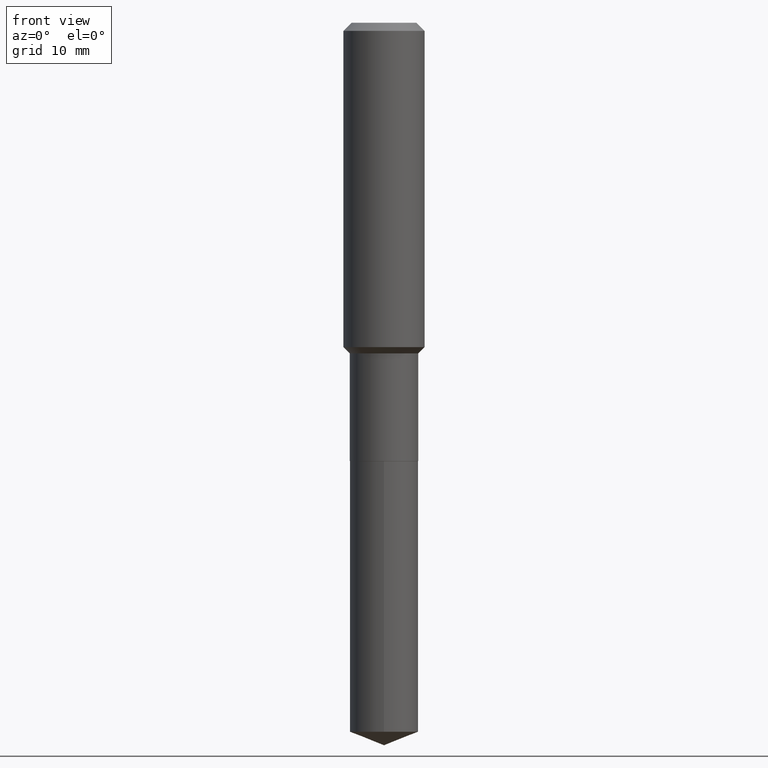
[diagram: clean part render]
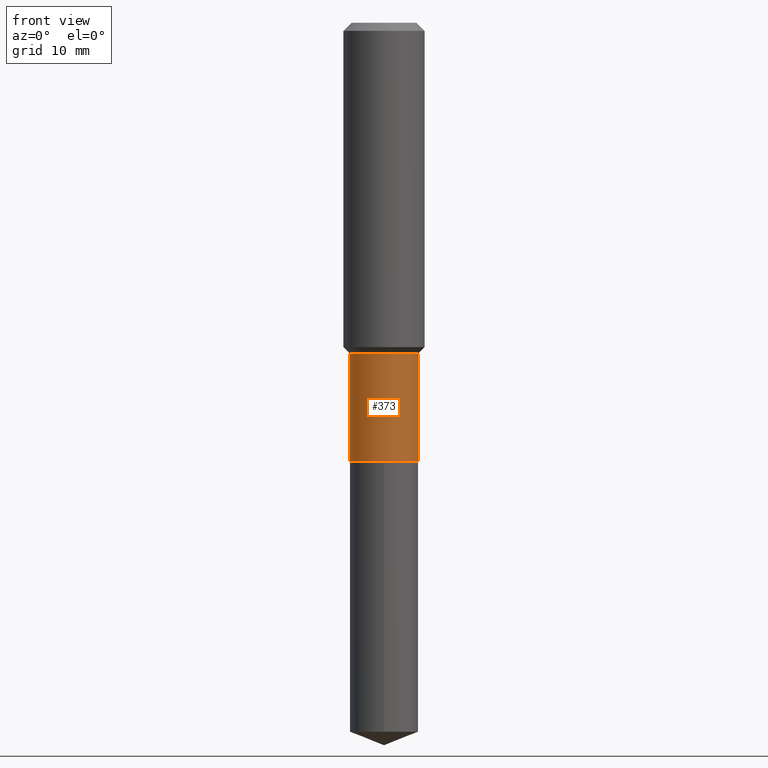
[diagram: same view with one face highlighted and labeled with its STEP entity id]
A machine part, front view. The second image highlights one B-rep face of the part: STEP entity #373.
In plain terms, the highlighted cylindrical surface (edge-blend (fillet) strip) has radius 4.2164 mm, axis along (-0, 0, 1).
Its self-contained STEP definition (entity closure, byte-faithful):
#6 = CARTESIAN_POINT ( 'NONE',  ( 5.197599400665889285E-29, -7.420794437577220826E-15, -2.125399999999999956 ) ) ;
#17 = CARTESIAN_POINT ( 'NONE',  ( -0.1659999999999999531, -5.330540588978220743E-15, -1.603699999999999903 ) ) ;
#29 = EDGE_LOOP ( 'NONE', ( #218, #78, #448, #58 ) ) ;
#35 = CIRCLE ( 'NONE', #223, 0.1659999999999999531 ) ;
#50 = CYLINDRICAL_SURFACE ( 'NONE', #240, 0.1659999999999999531 ) ;
#58 = ORIENTED_EDGE ( 'NONE', *, *, #393, .F. ) ;
#59 = DIRECTION ( 'NONE',  ( -2.445468806185136597E-29, 3.491481338843145583E-15, 1.000000000000000000 ) ) ;
#78 = ORIENTED_EDGE ( 'NONE', *, *, #139, .T. ) ;
#89 = DIRECTION ( 'NONE',  ( 1.000000000000000000, -6.982962677686269077E-15, 0.000000000000000000 ) ) ;
#118 = AXIS2_PLACEMENT_3D ( 'NONE', #6, #59, #89 ) ;
#130 = LINE ( 'NONE', #217, #258 ) ;
#131 = DIRECTION ( 'NONE',  ( 1.000000000000000000, -6.982962677686264344E-15, 0.000000000000000000 ) ) ;
#139 = EDGE_CURVE ( 'NONE', #202, #190, #346, .T. ) ;
#148 = EDGE_CURVE ( 'NONE', #190, #170, #130, .T. ) ;
#170 = VERTEX_POINT ( 'NONE', #327 ) ;
#173 = DIRECTION ( 'NONE',  ( 1.000000000000000000, -6.982962677686265922E-15, 4.876176775795935793E-29 ) ) ;
#184 = VERTEX_POINT ( 'NONE', #17 ) ;
#190 = VERTEX_POINT ( 'NONE', #290 ) ;
#202 = VERTEX_POINT ( 'NONE', #322 ) ;
#210 = DIRECTION ( 'NONE',  ( -2.445468806185136597E-29, 3.491481338843145583E-15, 1.000000000000000000 ) ) ;
#217 = CARTESIAN_POINT ( 'NONE',  ( 0.1659999999999999531, -1.159171804495919785E-15, 8.094453447821250782E-30 ) ) ;
#218 = ORIENTED_EDGE ( 'NONE', *, *, #231, .F. ) ;
#223 = AXIS2_PLACEMENT_3D ( 'NONE', #366, #210, #131 ) ;
#231 = EDGE_CURVE ( 'NONE', #202, #184, #246, .T. ) ;
#240 = AXIS2_PLACEMENT_3D ( 'NONE', #461, #316, #173 ) ;
#246 = LINE ( 'NONE', #330, #482 ) ;
#258 = VECTOR ( 'NONE', #433, 39.37007874015748143 ) ;
#283 = DIRECTION ( 'NONE',  ( -2.445468806185136877E-29, 3.491481338843145188E-15, 1.000000000000000000 ) ) ;
#288 = FACE_OUTER_BOUND ( 'NONE', #29, .T. ) ;
#290 = CARTESIAN_POINT ( 'NONE',  ( 0.1659999999999999809, -8.579966242073141795E-15, -2.125399999999999956 ) ) ;
#316 = DIRECTION ( 'NONE',  ( -2.445468806185136597E-29, 3.491481338843145583E-15, 1.000000000000000000 ) ) ;
#322 = CARTESIAN_POINT ( 'NONE',  ( -0.1659999999999999809, -5.330540588978220743E-15, -2.125399999999999956 ) ) ;
#327 = CARTESIAN_POINT ( 'NONE',  ( 0.1659999999999999531, -6.758460427598671607E-15, -1.603699999999999903 ) ) ;
#330 = CARTESIAN_POINT ( 'NONE',  ( -0.1659999999999999531, 1.179500941361765976E-15, -8.165432249823140313E-30 ) ) ;
#346 = CIRCLE ( 'NONE', #118, 0.1659999999999999809 ) ;
#366 = CARTESIAN_POINT ( 'NONE',  ( 3.921798324479103604E-29, -5.599288623102752216E-15, -1.603699999999999903 ) ) ;
#373 = ADVANCED_FACE ( 'NONE', ( #288 ), #50, .T. ) ;
#393 = EDGE_CURVE ( 'NONE', #184, #170, #35, .T. ) ;
#433 = DIRECTION ( 'NONE',  ( -2.445468806185136877E-29, 3.491481338843145188E-15, 1.000000000000000000 ) ) ;
#448 = ORIENTED_EDGE ( 'NONE', *, *, #148, .T. ) ;
#461 = CARTESIAN_POINT ( 'NONE',  ( 0.000000000000000000, 0.000000000000000000, 0.000000000000000000 ) ) ;
#482 = VECTOR ( 'NONE', #283, 39.37007874015748143 ) ;